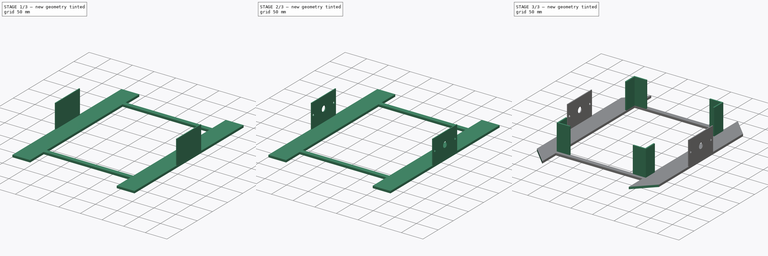
[diagram: build sequence overview — one tinted view per stage of 3, left to right]
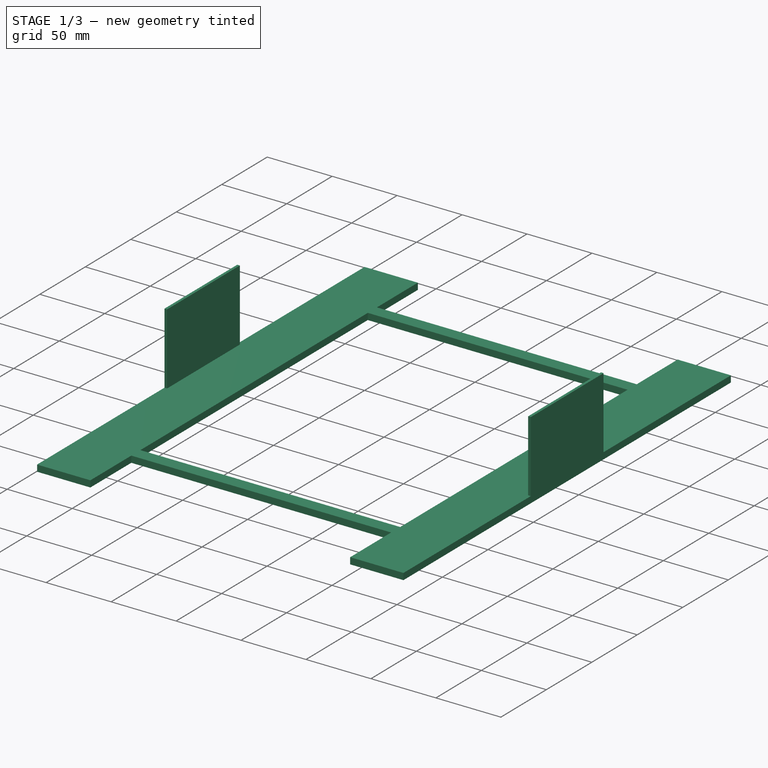
[diagram: stage 1 of 3 — iso view after this stage's code; geometry added in this stage tinted green]
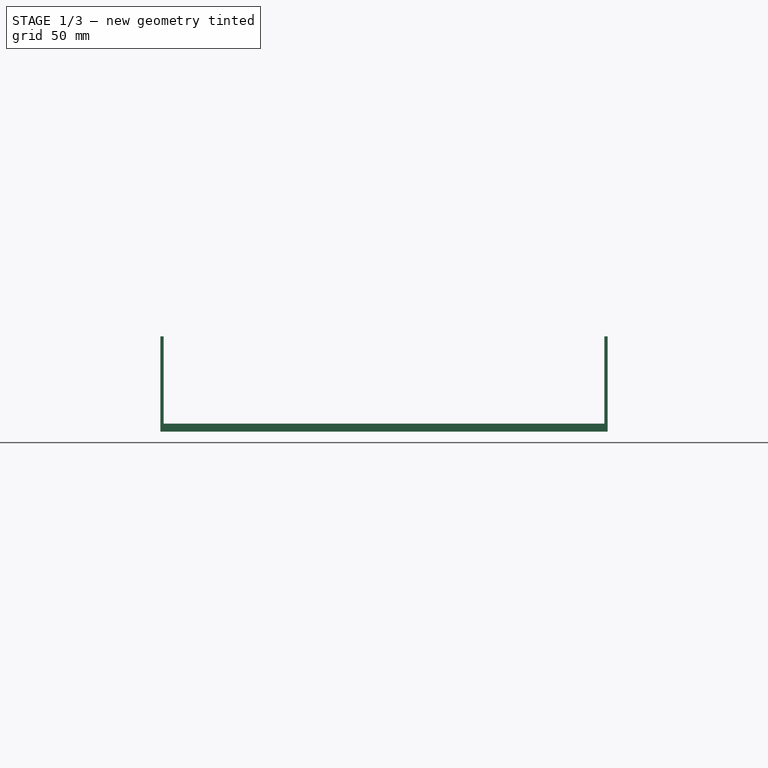
[diagram: stage 1 of 3 — front view after this stage's code; geometry added in this stage tinted green]
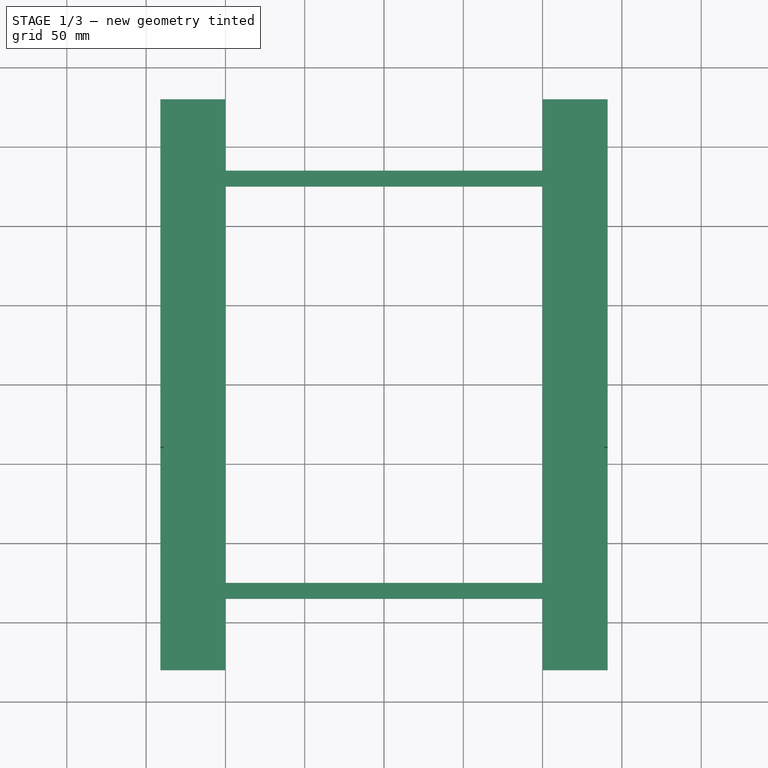
[diagram: stage 1 of 3 — top view after this stage's code; geometry added in this stage tinted green]
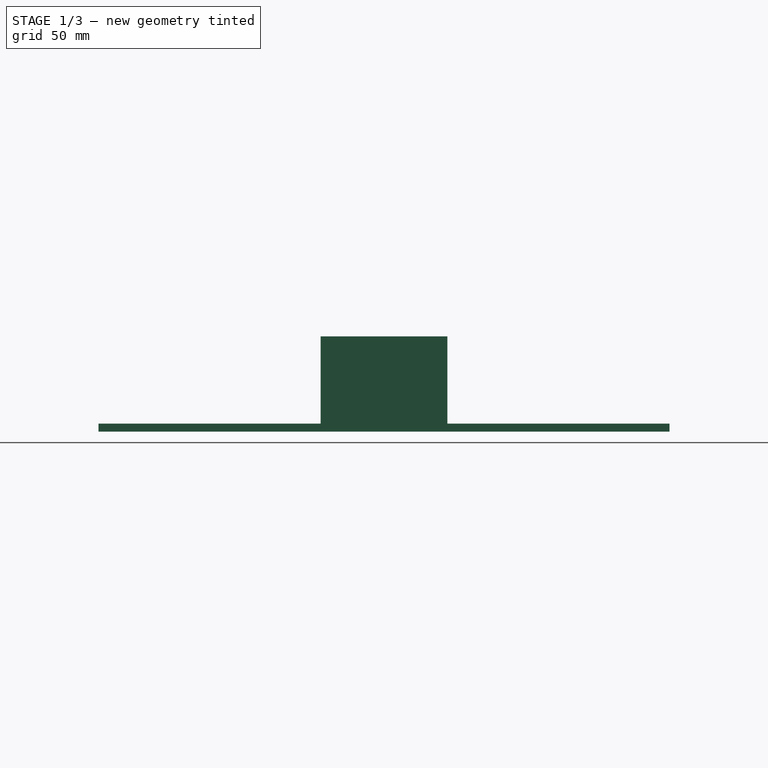
[diagram: stage 1 of 3 — right view after this stage's code; geometry added in this stage tinted green]
FCSTD DOCUMENT  (FreeCAD 0.15R4671 (Git))
Label: frame_base_1
License: All rights reserved
LicenseURL: http://en.wikipedia.org/wiki/All_rights_reserved
objects: Sketcher::SketchObject×5, Drawing::FeatureViewPart×4, PartDesign::Pad×3, PartDesign::Pocket×2, Drawing::FeatureViewAnnotation×1, Drawing::FeaturePage×1
note: 15 computed .brp shape members not serialized (recipe doc carries the construction recipe); baked Part::Feature solids carry a one-line shape summary decoded from their .brp

FEATURE [Sketcher::SketchObject] Sketch
  sketch-geometry (16):
    g0: LineSegment StartX=-100 StartY=-125 StartZ=0 EndX=100 EndY=-125 EndZ=0
    g1: LineSegment StartX=100 StartY=-125 StartZ=0 EndX=100 EndY=125 EndZ=0
    g2: LineSegment StartX=100 StartY=180 StartZ=0 EndX=141 EndY=180 EndZ=0
    g3: LineSegment StartX=141 StartY=180 StartZ=0 EndX=141 EndY=-180 EndZ=0
    g4: LineSegment StartX=141 StartY=-180 StartZ=0 EndX=100 EndY=-180 EndZ=0
    g5: LineSegment StartX=100 StartY=-180 StartZ=0 EndX=100 EndY=-135 EndZ=0
    g6: LineSegment StartX=100 StartY=-135 StartZ=0 EndX=-100 EndY=-135 EndZ=0
    g7: LineSegment StartX=-100 StartY=-135 StartZ=0 EndX=-100 EndY=-180 EndZ=0
    g8: LineSegment StartX=-100 StartY=-180 StartZ=0 EndX=-141 EndY=-180 EndZ=0
    g9: LineSegment StartX=-141 StartY=-180 StartZ=0 EndX=-141 EndY=180 EndZ=0
    g10: LineSegment StartX=-141 StartY=180 StartZ=0 EndX=-100 EndY=180 EndZ=0
    g11: LineSegment StartX=-100 StartY=180 StartZ=0 EndX=-100 EndY=135 EndZ=0
    g12: LineSegment StartX=-100 StartY=135 StartZ=0 EndX=100 EndY=135 EndZ=0
    g13: LineSegment StartX=-100 StartY=125 StartZ=0 EndX=100 EndY=125 EndZ=0
    g14: LineSegment StartX=100 StartY=135 StartZ=0 EndX=100 EndY=180 EndZ=0
    g15: LineSegment StartX=-100 StartY=125 StartZ=0 EndX=-100 EndY=-125 EndZ=0
  constraints (47):
    c: Coincident(g0,g1)
    c: Vertical(g1)
    c: Coincident(g14,g2)
    c: Horizontal(g2)
    c: Coincident(g2,g3)
    c: Vertical(g3)
    c: Coincident(g3,g4)
    c: Horizontal(g4)
    c: Coincident(g4,g5)
    c: Vertical(g5)
    c: Coincident(g5,g6)
    c: Horizontal(g6)
    c: Coincident(g6,g7)
    c: Vertical(g7)
    c: Coincident(g7,g8)
    c: Horizontal(g8)
    c: Coincident(g8,g9)
    c: Vertical(g9)
    c: Coincident(g9,g10)
    c: Horizontal(g10)
    c: Coincident(g10,g11)
    c: Coincident(g15,g0)
    c: Vertical(g11)
    c: Symmetric(g14,g10,g-2)
    c: Equal(g7,g5)
    c: DistanceX(g10) = 41
    c: Equal(g2,g10)
    c: DistanceY(g9) = 360
    c: Horizontal(g12)
    c: Horizontal(g13)
    c: Coincident(g1,g13)
    c: Coincident(g14,g12)
    c: Tangent(g1,g14)
    c: Coincident(g11,g12)
    c: Coincident(g15,g13)
    c: Tangent(g11,g15)
    c: Symmetric(g0,g0,g-2)
    c: DistanceY(g15) = -250
    c: DistanceX(g-1,g8) = -141
    c: Equal(g10,g8)
    c: Equal(g8,g4)
    c: DistanceY(g7) = -45
    c: Equal(g7,g11)
    c: Symmetric(g5,g12,g-1)
    c: DistanceX(g-1,g13) = -100
    c: Symmetric(g13,g0,g-1)
    c: Symmetric(g13,g0,g-1)
FEATURE [PartDesign::Pad] Pad
  Length = 5
  Length2 = 100
  Midplane = true
  Sketch = -> Sketch
  Type = 0
FEATURE [Sketcher::SketchObject] Sketch001
  Placement = pos=(0,0,2.5) rot=(0,0,1;0rad)
  Support = -> Pad [Face18]
  sketch-geometry (8):
    g0: LineSegment StartX=-141 StartY=40 StartZ=0 EndX=-139 EndY=40 EndZ=0
    g1: LineSegment StartX=-139 StartY=40 StartZ=0 EndX=-139 EndY=-40 EndZ=0
    g2: LineSegment StartX=-139 StartY=-40 StartZ=0 EndX=-141 EndY=-40 EndZ=0
    g3: LineSegment StartX=-141 StartY=-40 StartZ=0 EndX=-141 EndY=40 EndZ=0
    g4: LineSegment StartX=139 StartY=40 StartZ=0 EndX=141 EndY=40 EndZ=0
    g5: LineSegment StartX=141 StartY=40 StartZ=0 EndX=141 EndY=-40 EndZ=0
    g6: LineSegment StartX=141 StartY=-40 StartZ=0 EndX=139 EndY=-40 EndZ=0
    g7: LineSegment StartX=139 StartY=-40 StartZ=0 EndX=139 EndY=40 EndZ=0
  constraints (24):
    c: Coincident(g0,g1)
    c: Coincident(g1,g2)
    c: Coincident(g2,g3)
    c: Coincident(g3,g0)
    c: Horizontal(g0)
    c: Horizontal(g2)
    c: Vertical(g1)
    c: Vertical(g3)
    c: DistanceY(g3) = 80
    c: DistanceX(g0) = 2
    c: Symmetric(g0,g1,g-1)
    c: DistanceX(g-1,g2) = -141
    c: Coincident(g4,g5)
    c: Coincident(g5,g6)
    c: Coincident(g6,g7)
    c: Coincident(g7,g4)
    c: Horizontal(g4)
    c: Horizontal(g6)
    c: Vertical(g5)
    c: Vertical(g7)
    c: Equal(g5,g3)
    c: Equal(g0,g4)
    c: DistanceX(g-1,g5) = 141
    c: Symmetric(g4,g6,g-1)
FEATURE [PartDesign::Pad] Pad001
  Length = 55
  Length2 = 100
  Sketch = -> Sketch001
  Type = 0
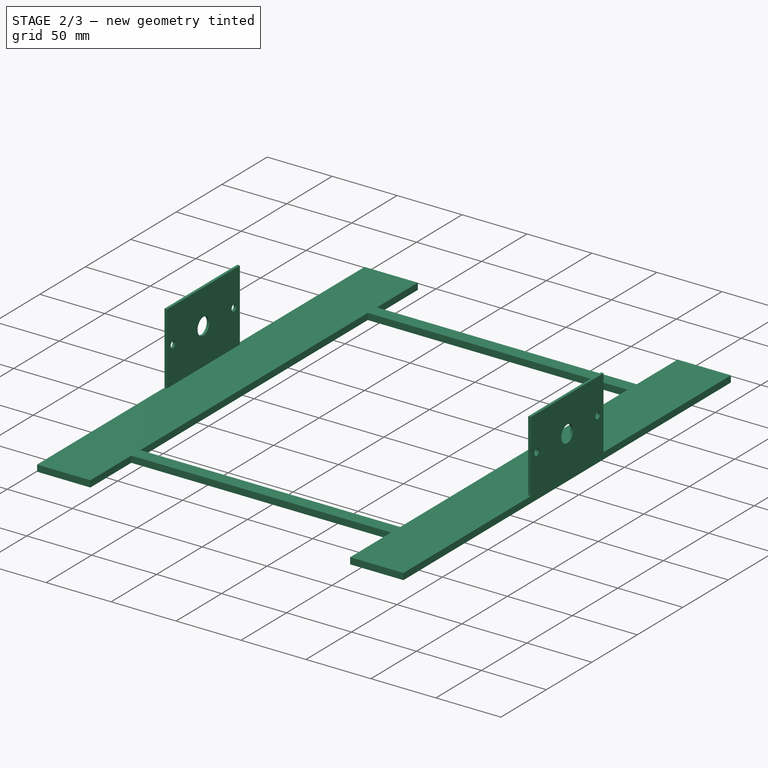
[diagram: stage 2 of 3 — iso view after this stage's code; geometry added in this stage tinted green]
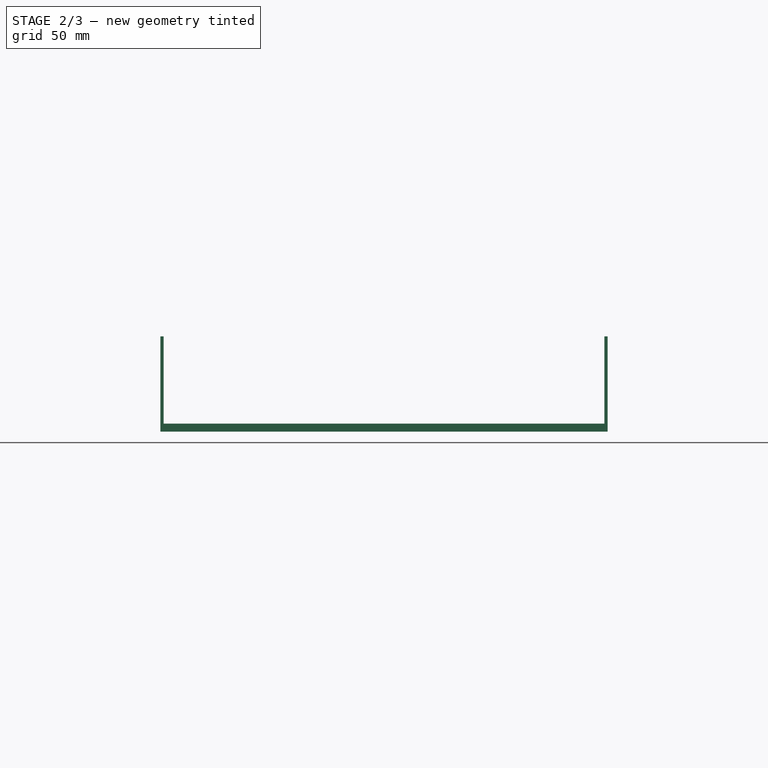
[diagram: stage 2 of 3 — front view after this stage's code; geometry added in this stage tinted green]
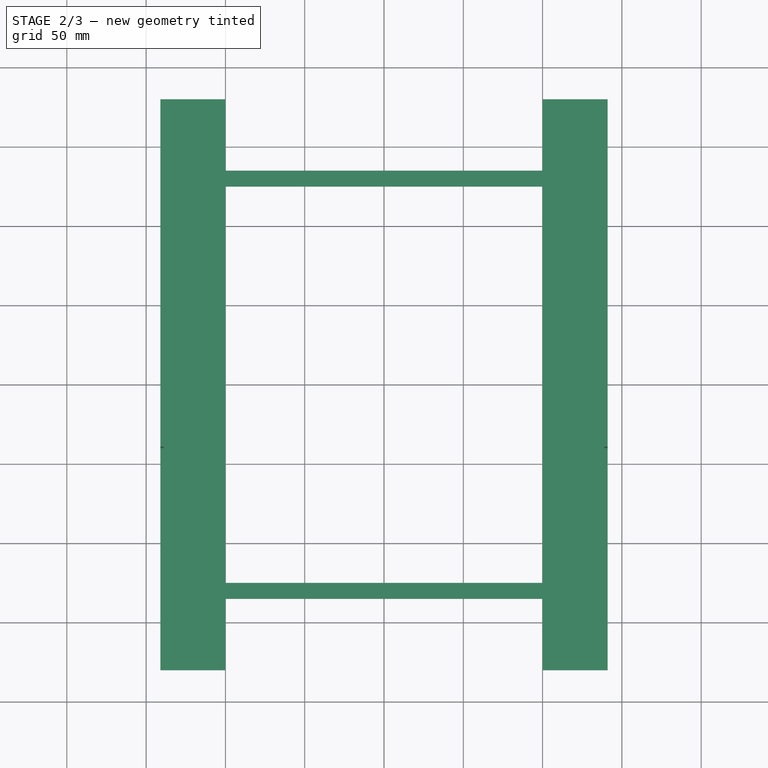
[diagram: stage 2 of 3 — top view after this stage's code; geometry added in this stage tinted green]
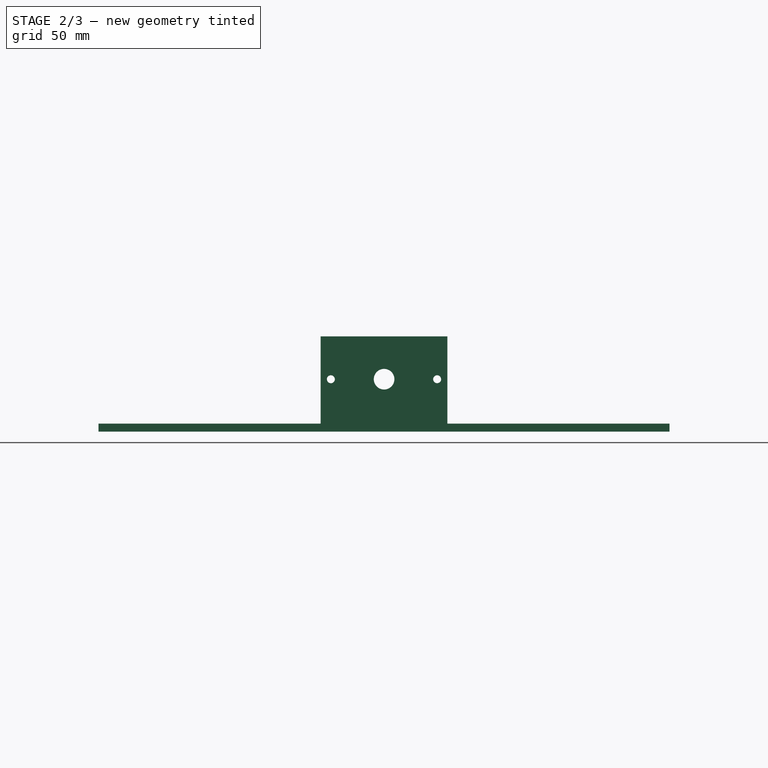
[diagram: stage 2 of 3 — right view after this stage's code; geometry added in this stage tinted green]
FEATURE [Sketcher::SketchObject] Sketch002
  Placement = pos=(-141,0,0) rot=(0.57735,-0.57735,-0.57735;2.0944rad)
  Support = -> Pad001 [Face27]
  sketch-geometry (3):
    g0: Circle CenterX=-33.5 CenterY=30.5 CenterZ=0 NormalX=0 NormalY=0 NormalZ=1 Radius=2.5
    g1: Circle CenterX=33.5 CenterY=30.5 CenterZ=0 NormalX=0 NormalY=0 NormalZ=1 Radius=2.5
    g2: Circle CenterX=-0.051525 CenterY=30.5291 CenterZ=0 NormalX=0 NormalY=0 NormalZ=1 Radius=6.5
  constraints (6):
    c: Equal(g0,g1)
    c: Symmetric(g1,g0,g-2)
    c: Radius(g1) = 2.5
    c: DistanceX(g1,g0) = -67
    c: DistanceY(g-1,g0) = 30.5
    c: Radius(g2) = 6.5
FEATURE [PartDesign::Pocket] Pocket
  Length = 5
  Sketch = -> Sketch002
  Type = 1
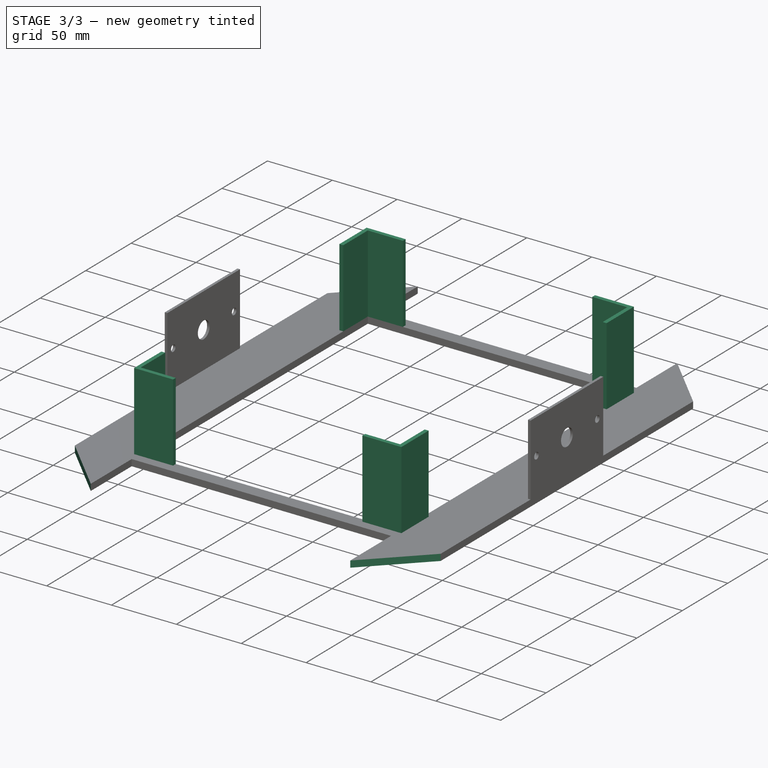
[diagram: stage 3 of 3 — iso view after this stage's code; geometry added in this stage tinted green]
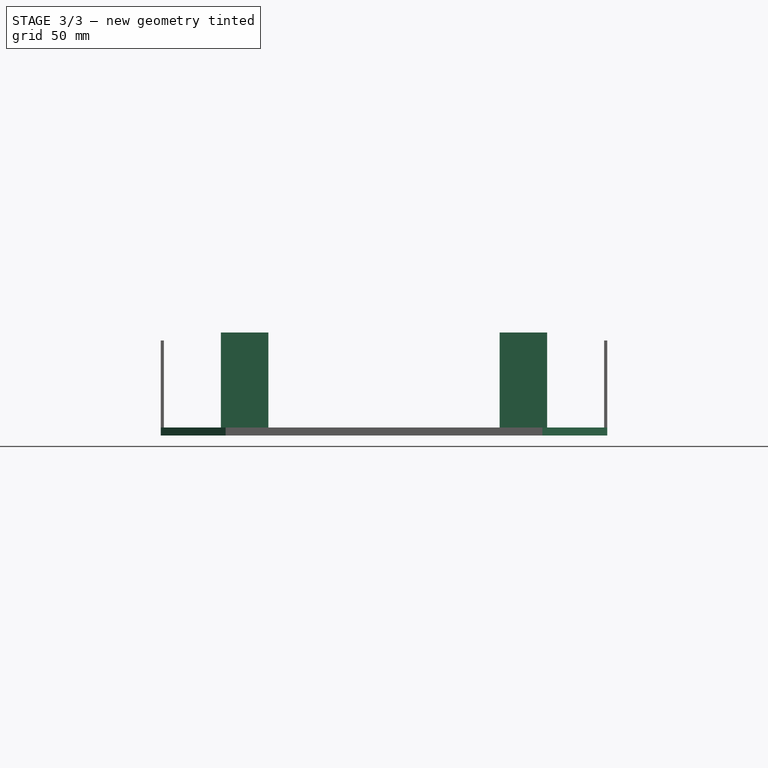
[diagram: stage 3 of 3 — front view after this stage's code; geometry added in this stage tinted green]
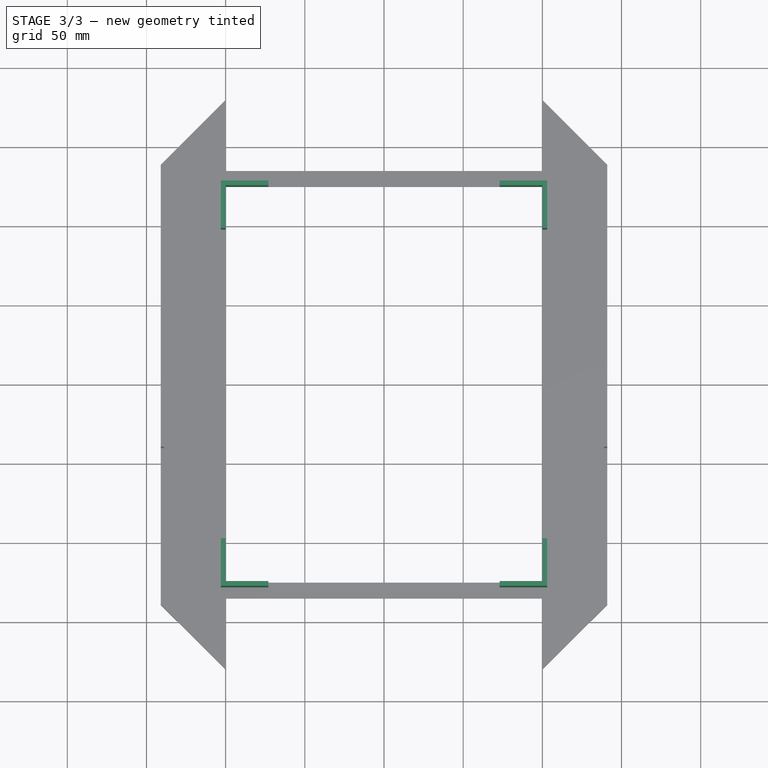
[diagram: stage 3 of 3 — top view after this stage's code; geometry added in this stage tinted green]
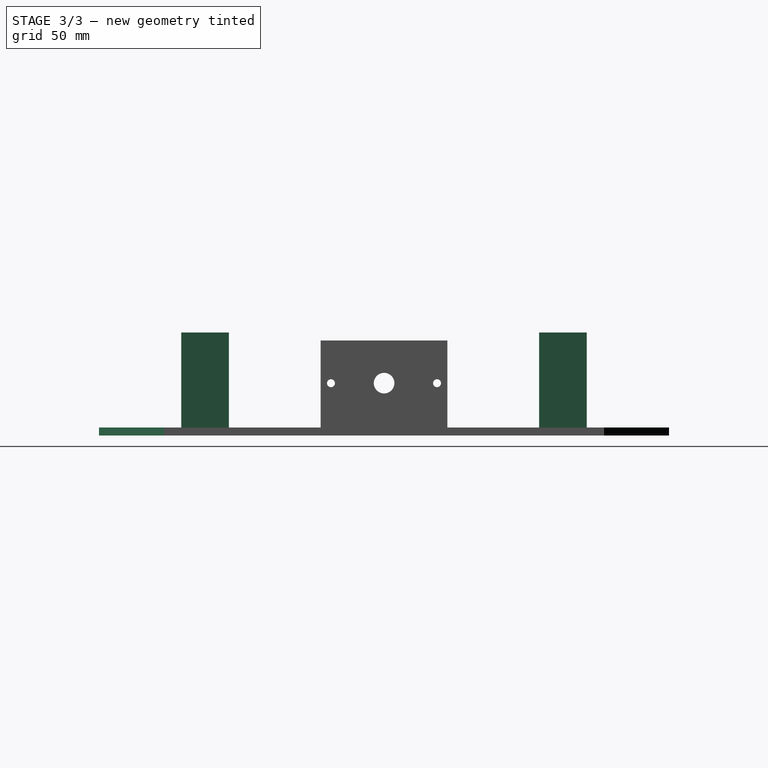
[diagram: stage 3 of 3 — right view after this stage's code; geometry added in this stage tinted green]
FEATURE [Sketcher::SketchObject] Sketch003
  Placement = pos=(0,0,2.5) rot=(0,0,1;0rad)
  Support = -> Pocket [Face5]
  sketch-geometry (24):
    g0: LineSegment StartX=-100 StartY=98 StartZ=0 EndX=-103 EndY=98 EndZ=0
    g1: LineSegment StartX=-103 StartY=98 StartZ=0 EndX=-103 EndY=128 EndZ=0
    g2: LineSegment StartX=-103 StartY=128 StartZ=0 EndX=-73 EndY=128 EndZ=0
    g3: LineSegment StartX=-73 StartY=128 StartZ=0 EndX=-73 EndY=125 EndZ=0
    g4: LineSegment StartX=-73 StartY=125 StartZ=0 EndX=-100 EndY=125 EndZ=0
    g5: LineSegment StartX=-100 StartY=125 StartZ=0 EndX=-100 EndY=98 EndZ=0
    g6: LineSegment StartX=73 StartY=125 StartZ=0 EndX=100 EndY=125 EndZ=0
    g7: LineSegment StartX=100 StartY=125 StartZ=0 EndX=100 EndY=98 EndZ=0
    g8: LineSegment StartX=100 StartY=98 StartZ=0 EndX=103 EndY=98 EndZ=0
    g9: LineSegment StartX=103 StartY=98 StartZ=0 EndX=103 EndY=128 EndZ=0
    g10: LineSegment StartX=103 StartY=128 StartZ=0 EndX=73 EndY=128 EndZ=0
    g11: LineSegment StartX=73 StartY=128 StartZ=0 EndX=73 EndY=125 EndZ=0
    g12: LineSegment StartX=-73 StartY=-125 StartZ=0 EndX=-100 EndY=-125 EndZ=0
    g13: LineSegment StartX=-100 StartY=-125 StartZ=0 EndX=-100 EndY=-98 EndZ=0
    g14: LineSegment StartX=-100 StartY=-98 StartZ=0 EndX=-103 EndY=-98 EndZ=0
    g15: LineSegment StartX=-103 StartY=-98 StartZ=0 EndX=-103 EndY=-128 EndZ=0
    g16: LineSegment StartX=-103 StartY=-128 StartZ=0 EndX=-73 EndY=-128 EndZ=0
    g17: LineSegment StartX=-73 StartY=-128 StartZ=0 EndX=-73 EndY=-125 EndZ=0
    g18: LineSegment StartX=73 StartY=-125 StartZ=0 EndX=100 EndY=-125 EndZ=0
    g19: LineSegment StartX=100 StartY=-125 StartZ=0 EndX=100 EndY=-98 EndZ=0
    g20: LineSegment StartX=100 StartY=-98 StartZ=0 EndX=103 EndY=-98 EndZ=0
    g21: LineSegment StartX=103 StartY=-98 StartZ=0 EndX=103 EndY=-128 EndZ=0
    g22: LineSegment StartX=103 StartY=-128 StartZ=0 EndX=73 EndY=-128 EndZ=0
    g23: LineSegment StartX=73 StartY=-128 StartZ=0 EndX=73 EndY=-125 EndZ=0
  constraints (70):
    c: Coincident(g0,g1)
    c: Coincident(g1,g2)
    c: Coincident(g2,g3)
    c: Coincident(g3,g4)
    c: Horizontal(g4)
    c: Coincident(g4,g5)
    c: Coincident(g5,g0)
    c: Vertical(g5)
    c: DistanceX(g0) = -3
    c: DistanceY(g1) = 30
    c: DistanceX(g-1,g0) = -100
    c: DistanceX(g2) = 30
    c: Vertical(g1)
    c: Vertical(g3)
    c: Horizontal(g0)
    c: Horizontal(g2)
    c: Equal(g0,g3)
    c: Horizontal(g6)
    c: Coincident(g6,g7)
    c: Vertical(g7)
    c: Coincident(g7,g8)
    c: Horizontal(g8)
    c: Coincident(g8,g9)
    c: Vertical(g9)
    c: Coincident(g9,g10)
    c: Horizontal(g10)
    c: Coincident(g10,g11)
    c: Coincident(g11,g6)
    c: Vertical(g11)
    c: Equal(g9,g1)
    c: Equal(g7,g5)
    c: Equal(g3,g11)
    c: Symmetric(g6,g4,g-2)
    c: Equal(g8,g0)
    c: Equal(g10,g2)
    c: Horizontal(g12)
    c: Coincident(g12,g13)
    c: Vertical(g13)
    c: Coincident(g13,g14)
    c: Horizontal(g14)
    c: Coincident(g14,g15)
    c: Coincident(g15,g16)
    c: Horizontal(g16)
    c: Coincident(g17,g12)
    c: Coincident(g16,g17)
    c: Equal(g17,g3)
    c: Equal(g4,g12)
    c: Equal(g13,g5)
    c: Equal(g0,g14)
    c: Symmetric(g0,g13,g-1)
    c: Vertical(g15)
    c: Vertical(g17)
    c: DistanceY(g-1,g4) = 125
    c: Horizontal(g18)
    c: Coincident(g18,g19)
    c: Vertical(g19)
    c: Coincident(g19,g20)
    c: Horizontal(g20)
    c: Coincident(g20,g21)
    c: Vertical(g21)
    c: Coincident(g21,g22)
    c: Horizontal(g22)
    c: Coincident(g22,g23)
    c: Coincident(g23,g18)
    c: Vertical(g23)
    c: Equal(g23,g17)
    c: Equal(g16,g22)
    c: Symmetric(g18,g12,g-2)
    c: Equal(g19,g13)
    c: Equal(g20,g14)
FEATURE [PartDesign::Pad] Pad002
  Length = 60
  Length2 = 100
  Sketch = -> Sketch003
  Type = 0
FEATURE [Sketcher::SketchObject] Sketch004
  Placement = pos=(0,0,2.5) rot=(0,0,1;0rad)
  Support = -> Pad002 [Face5]
  sketch-geometry (12):
    g0: LineSegment StartX=-100 StartY=180 StartZ=0 EndX=-154.539 EndY=125.461 EndZ=0
    g1: LineSegment StartX=-154.539 StartY=125.461 StartZ=0 EndX=-154.539 EndY=180 EndZ=0
    g2: LineSegment StartX=-154.539 StartY=180 StartZ=0 EndX=-100 EndY=180 EndZ=0
    g3: LineSegment StartX=100 StartY=180 StartZ=0 EndX=154.539 EndY=125.461 EndZ=0
    g4: LineSegment StartX=154.539 StartY=125.461 StartZ=0 EndX=154.539 EndY=180 EndZ=0
    g5: LineSegment StartX=154.539 StartY=180 StartZ=0 EndX=100 EndY=180 EndZ=0
    g6: LineSegment StartX=-100 StartY=-180 StartZ=0 EndX=-154.539 EndY=-125.461 EndZ=0
    g7: LineSegment StartX=-154.539 StartY=-125.461 StartZ=0 EndX=-154.539 EndY=-180 EndZ=0
    g8: LineSegment StartX=-154.539 StartY=-180 StartZ=0 EndX=-100 EndY=-180 EndZ=0
    g9: LineSegment StartX=100 StartY=-180 StartZ=0 EndX=154.539 EndY=-125.461 EndZ=0
    g10: LineSegment StartX=154.539 StartY=-125.461 StartZ=0 EndX=154.539 EndY=-180 EndZ=0
    g11: LineSegment StartX=154.539 StartY=-180 StartZ=0 EndX=100 EndY=-180 EndZ=0
  constraints (32):
    c: Coincident(g0,g1)
    c: Vertical(g1)
    c: Coincident(g1,g2)
    c: Coincident(g2,g0)
    c: Horizontal(g2)
    c: Angle(g0,g1) = 0.785398
    c: DistanceX(g-1,g0) = -100
    c: DistanceY(g-1,g0) = 180
    c: Coincident(g3,g4)
    c: Vertical(g4)
    c: Coincident(g4,g5)
    c: Coincident(g5,g3)
    c: Horizontal(g5)
    c: Equal(g3,g0)
    c: Equal(g5,g2)
    c: Symmetric(g3,g0,g-2)
    c: Coincident(g6,g7)
    c: Vertical(g7)
    c: Coincident(g7,g8)
    c: Coincident(g8,g6)
    c: Horizontal(g8)
    c: Equal(g8,g2)
    c: Equal(g7,g1)
    c: Symmetric(g6,g0,g-1)
    c: Coincident(g9,g10)
    c: Vertical(g10)
    c: Coincident(g10,g11)
    c: Coincident(g11,g9)
    c: Horizontal(g11)
    c: Equal(g10,g4)
    c: Equal(g9,g3)
    c: Symmetric(g3,g9,g-1)
FEATURE [PartDesign::Pocket] Pocket001  label="frame"
  Length = 5
  Sketch = -> Sketch004
  Type = 1
FEATURE [Drawing::FeatureViewPart] Ortho  label="Ortho_0_0"
  Direction = (1,0,0)
  HiddenWidth = 0.15
  LineWidth = 0.3
  Rotation = -90
  Scale = 0.3
  ShowHiddenLines = false
  ShowSmoothLines = false
  Source = -> Pocket001
  Tolerance = 0.05
  ViewResult = <g id="Ortho_0_0"\n   transform="rotate(-90,100.5,142.458) translate(100.5,142.458) scale(0.3,0.3)"\n  >\n<g   stroke="rgb(0, 0, 0)"\n   stroke-width="1"\n   stroke-linecap="butt"\n   stroke-linejoin="miter"\n   fill="none"\n   transform="scale(1,-1)"\n  >\n<path id= "1" d=" M 2.5 -180 L -2.5 -180 " />\n<path id= "2" d=" M -2.5 -180 L -2.5 -139 " />\n<path id= "3" d=" M -2.5 -139 L -2.5 139 " />\n<path id= "4" d=" M -2.5 180 L -2.5 139 " />\n<path id= "5" d=" M 2.5 -180 L 2.5 -139 " />\n<path id= "6" d=" M 2.5 -139 L 2.5 -40 " />\n<path id= "7" d=" M 2.5 40 L 2.5 139 " />\n<path id= "8" d=" M 2.5 180 L 2.5 139 " />\n<path id= "9" d=" M 2.5 -139 L -2.5 -139 " />\n<path id= "10" d=" M 2.5 139 L -2.5 139 " />\n<path id= "11" d=" M 2.5 -40 L 2.5 40 " />\n<path id= "12" d=" M 2.5 180 L -2.5 180 " />\n<path id= "13" d=" M 2.5 -40 L 57.5 -40 " />\n<path id= "14" d=" M 2.5 40 L 57.5 40 " />\n<path id= "15" d=" M 2.5 40 L 57.5 40 " />\n<circle cx ="30.5" cy ="-33.5" r ="2.5" /><path id= "17" d=" M 2.5 128 L 62.5 128 " />\n<path id= "18" d=" M 2.5 128 L 62.5 128 " />\n<path id= "19" d=" M 2.5 98 L 62.5 98 " />\n<path id= "20" d=" M 62.5 98 L 62.5 128 " />\n<path id= "21" d=" M 2.5 -98 L 62.5 -98 " />\n<path id= "22" d=" M 62.5 -98 L 62.5 -128 " />\n<path id= "23" d=" M 2.5 -128 L 62.5 -128 " />\n<path id= "24" d=" M 2.5 -128 L 62.5 -128 " />\n<path id= "25" d=" M 57.5 -40 L 57.5 40 " />\n<circle cx ="30.5" cy ="33.5" r ="2.5" /><circle cx ="30.5291" cy ="-0.051525" r ="6.5" /><circle cx ="30.5" cy ="-33.5" r ="2.5" /></g>\n</g>
  Visible = true
  X = 100.5
  Y = 142.458
FEATURE [Drawing::FeatureViewPart] Ortho001  label="Ortho_0_1"
  Direction = (0,0,1)
  HiddenWidth = 0.15
  LineWidth = 0.35
  Rotation = 90
  Scale = 0.3
  ShowHiddenLines = false
  ShowSmoothLines = false
  Source = -> Pocket001
  Tolerance = 0.05
  ViewResult = <blob: 4081 chars omitted>
  Visible = true
  X = 100.5
  Y = 67.6667
FEATURE [Drawing::FeatureViewPart] Ortho002  label="Ortho_1_0"
  Direction = (0,1,0)
  HiddenWidth = 0.15
  LineWidth = 0.35
  Rotation = -90
  Scale = 0.3
  ShowHiddenLines = false
  ShowSmoothLines = false
  Source = -> Pocket001
  Tolerance = 0.05
  ViewResult = <blob: 2239 chars omitted>
  Visible = true
  X = 216.25
  Y = 142.458
FEATURE [Drawing::FeatureViewPart] Ortho003  label="Ortho_1_1"
  Direction = (0.57735,0.57735,0.57735)
  HiddenWidth = 0.15
  LineWidth = 0.35
  Rotation = 120
  Scale = 0.3
  ShowHiddenLines = false
  ShowSmoothLines = false
  Source = -> Pocket001
  Tolerance = 0.05
  ViewResult = <blob: 8663 chars omitted>
  Visible = true
  X = 216.25
  Y = 75.0151
FEATURE [Drawing::FeatureViewAnnotation] Annotation
  Font = Sans
  Rotation = 0
  Scale = 7
  ViewResult = <g transform="translate(10,10) rotate(0)">\n<text id="Annotation"\n font-family="Sans"\n font-size="7"\n fill="#000000">\n<tspan x="0" dy="1em"></tspan>\n</text>\n</g>
  Visible = true
  X = 10
  Y = 10
FEATURE [Drawing::FeaturePage] Page
  EditableTexts = Siqueira | Siqueira | Pindí | Drawing | Frame Pindí 1 | 0001 | 2015-06-21
  Group = -> [Ortho,Ortho001,Ortho002,Ortho003,Annotation]
  Template = <path>
note: 1 file-system path scrubbed to <path> (originals preserved in the JSON sidecar)
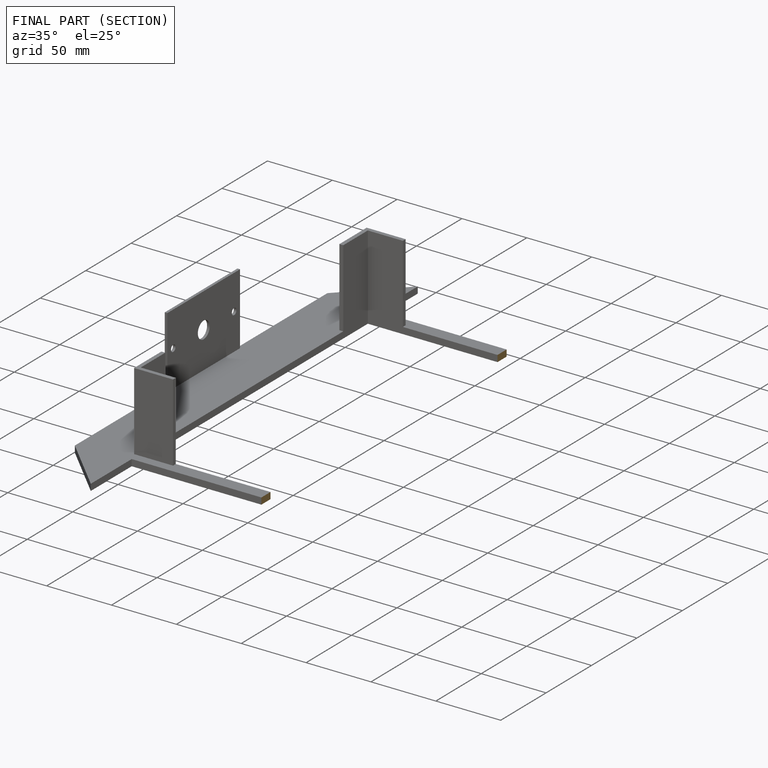
[diagram: finished part — half-section view (interior)]
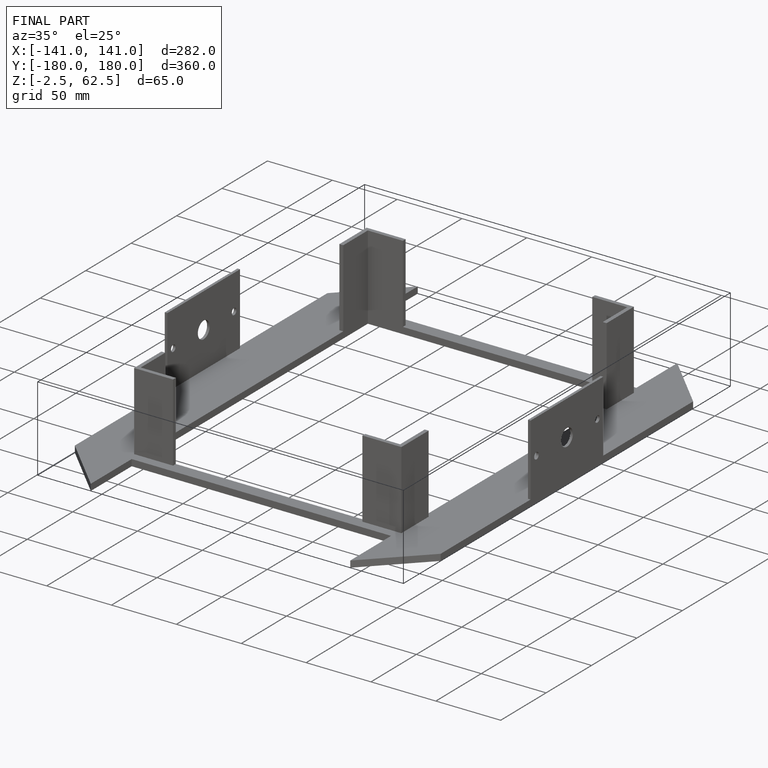
[diagram: finished part — iso view with bounding-box wireframe]
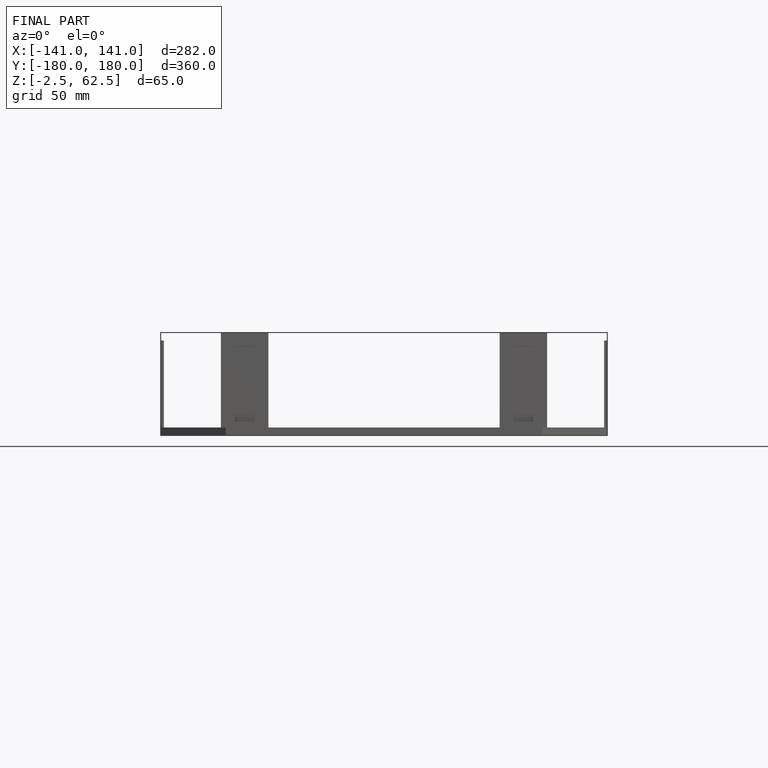
[diagram: finished part — front view with bounding-box wireframe]
